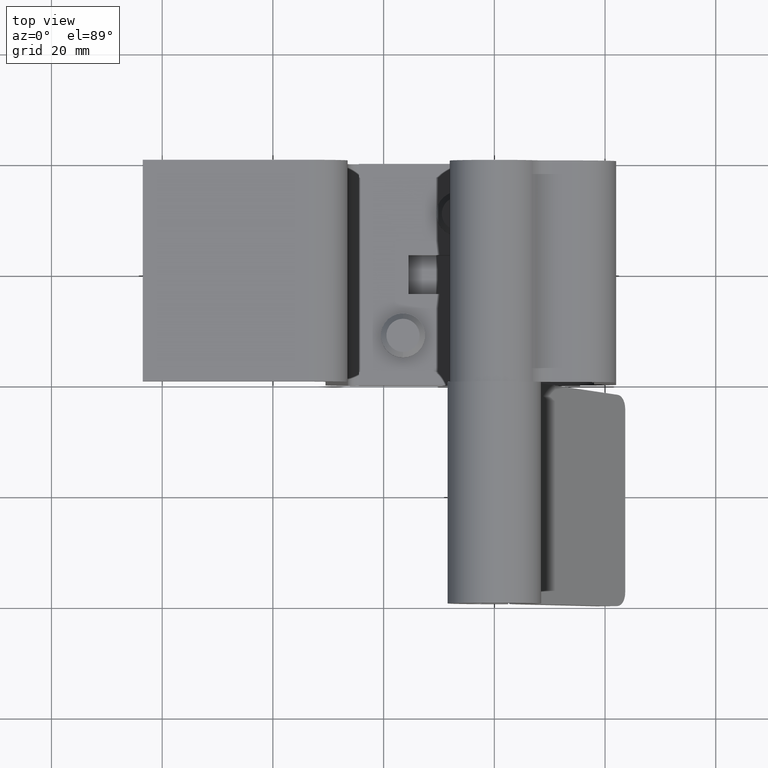
[diagram: clean part render]
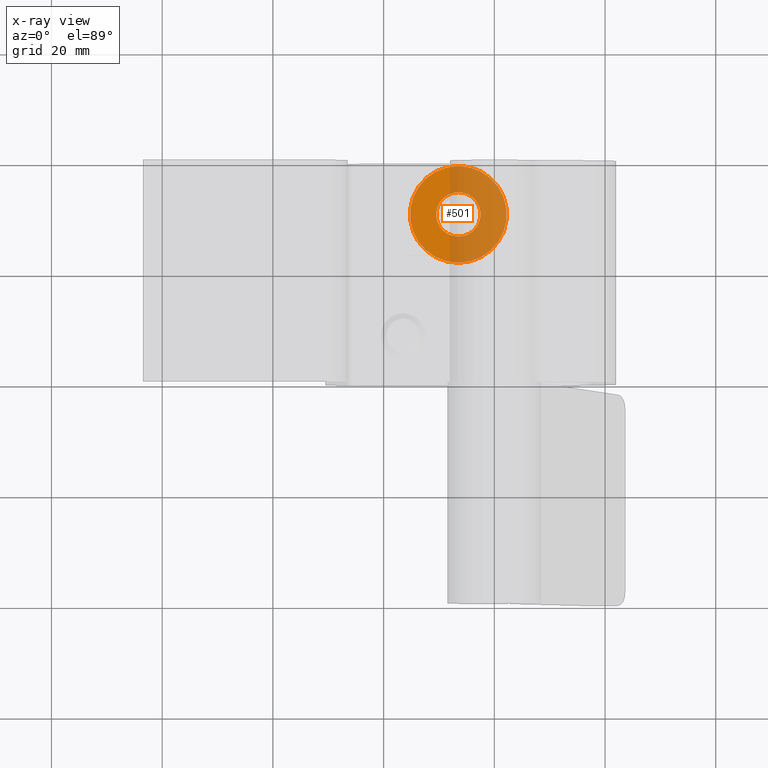
[diagram: x-ray — body ghosted, one internal face saturated and labeled with its STEP entity id]
A machine part, top view, then the same camera in x-ray: the body is ghosted and one INTERNAL B-rep face — a face not visible from any outside direction — is saturated and labeled: STEP entity #501.
In plain terms, the highlighted planar face has unit normal (0, 0, 1).
Its self-contained STEP definition (entity closure, byte-faithful):
#501=ADVANCED_FACE('',(#2428,#2429),#2427,.T.);
#2427=PLANE('',#4770);
#2428=FACE_OUTER_BOUND('',#4771,.T.);
#2429=FACE_BOUND('',#4772,.T.);
#4767=CARTESIAN_POINT('',(-3.46865345783E+01,4.30000025369E+01,6.03750028677E+01));
#4768=DIRECTION('',(0.00000000000E+00,-1.00000000000E+00,0.00000000000E+00));
#4769=DIRECTION('',(0.00000000000E+00,0.00000000000E+00,-1.00000000000E+00));
#4770=AXIS2_PLACEMENT_3D('',#4767,#4768,#4769);
#4771=EDGE_LOOP('',(#6671,#6672));
#4772=EDGE_LOOP('',(#6673,#6674));
#6671=ORIENTED_EDGE('',*,*,#7718,.F.);
#6672=ORIENTED_EDGE('',*,*,#7719,.F.);
#6673=ORIENTED_EDGE('',*,*,#7720,.F.);
#6674=ORIENTED_EDGE('',*,*,#7721,.F.);
#7718=EDGE_CURVE('',#11097,#11098,#11099,.T.);
#7719=EDGE_CURVE('',#11098,#11097,#11105,.T.);
#7720=EDGE_CURVE('',#11111,#11112,#11113,.T.);
#7721=EDGE_CURVE('',#11112,#11111,#11119,.T.);
#11097=VERTEX_POINT('',#15245);
#11098=VERTEX_POINT('',#15246);
#11099=CIRCLE('',#15250,8.75000041560E+00);
#11105=CIRCLE('',#15254,8.75000041560E+00);
#11111=VERTEX_POINT('',#15255);
#11112=VERTEX_POINT('',#15256);
#11113=CIRCLE('',#15260,4.00000018999E+00);
#11119=CIRCLE('',#15264,4.00000018999E+00);
#15245=CARTESIAN_POINT('',(-1.65000002350E+01,4.30000025369E+01,4.02500019118E+01));
#15246=CARTESIAN_POINT('',(-1.65000002350E+01,4.30000025369E+01,5.77500027430E+01));
#15247=CARTESIAN_POINT('',(-1.65000002350E+01,4.30000025369E+01,4.90000023274E+01));
#15248=DIRECTION('',(0.00000000000E+00,1.00000000000E+00,0.00000000000E+00));
#15249=DIRECTION('',(-1.22460635382E-16,0.00000000000E+00,1.00000000000E+00));
#15250=AXIS2_PLACEMENT_3D('',#15247,#15248,#15249);
#15251=CARTESIAN_POINT('',(-1.65000002350E+01,4.30000025369E+01,4.90000023274E+01));
#15252=DIRECTION('',(0.00000000000E+00,1.00000000000E+00,0.00000000000E+00));
#15253=DIRECTION('',(-1.22460635382E-16,0.00000000000E+00,1.00000000000E+00));
#15254=AXIS2_PLACEMENT_3D('',#15251,#15252,#15253);
#15255=CARTESIAN_POINT('',(-1.65000002350E+01,4.30000025369E+01,5.30000025174E+01));
#15256=CARTESIAN_POINT('',(-1.65000002350E+01,4.30000025369E+01,4.50000021374E+01));
#15257=CARTESIAN_POINT('',(-1.65000002350E+01,4.30000025369E+01,4.90000023274E+01));
#15258=DIRECTION('',(0.00000000000E+00,-1.00000000000E+00,-0.00000000000E+00));
#15259=DIRECTION('',(-1.22460635382E-16,0.00000000000E+00,-1.00000000000E+00));
#15260=AXIS2_PLACEMENT_3D('',#15257,#15258,#15259);
#15261=CARTESIAN_POINT('',(-1.65000002350E+01,4.30000025369E+01,4.90000023274E+01));
#15262=DIRECTION('',(0.00000000000E+00,-1.00000000000E+00,-0.00000000000E+00));
#15263=DIRECTION('',(-1.22460635382E-16,0.00000000000E+00,-1.00000000000E+00));
#15264=AXIS2_PLACEMENT_3D('',#15261,#15262,#15263);